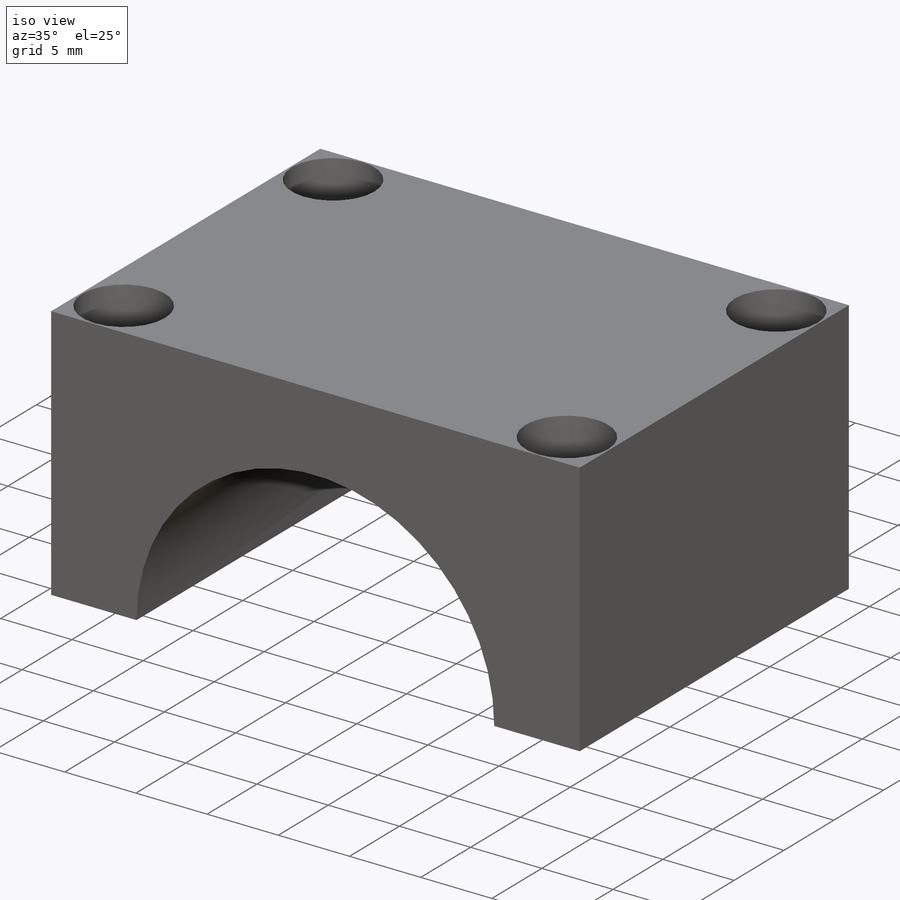
[diagram: iso view]
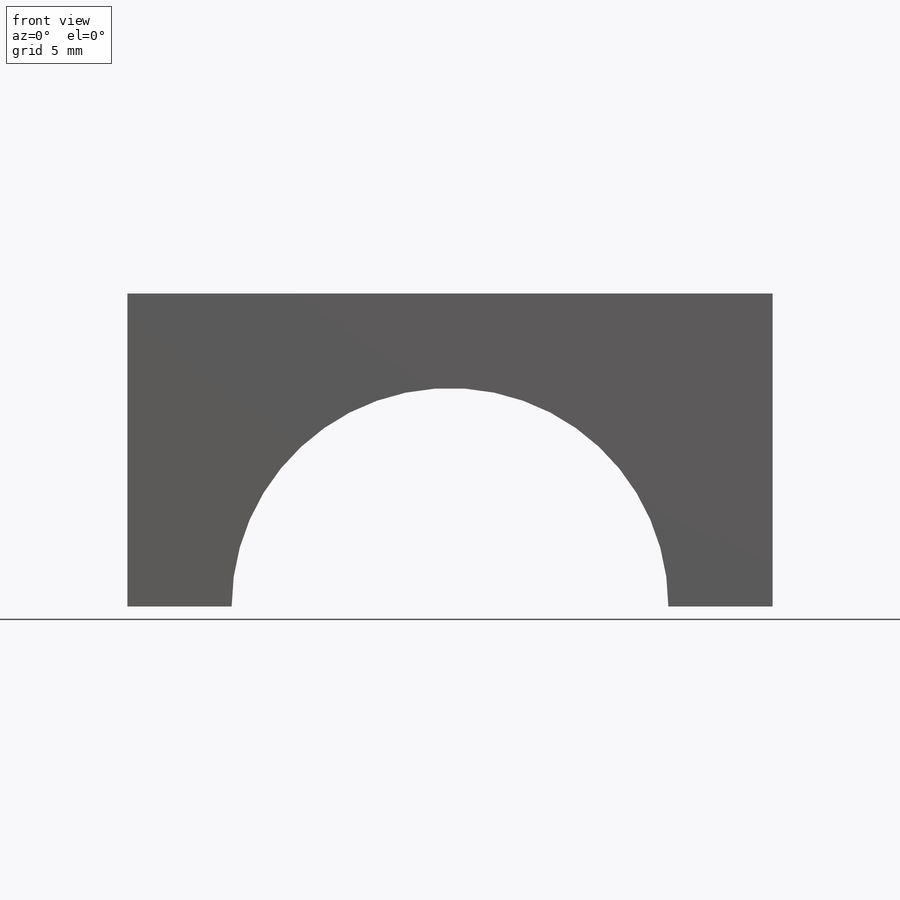
[diagram: front view]
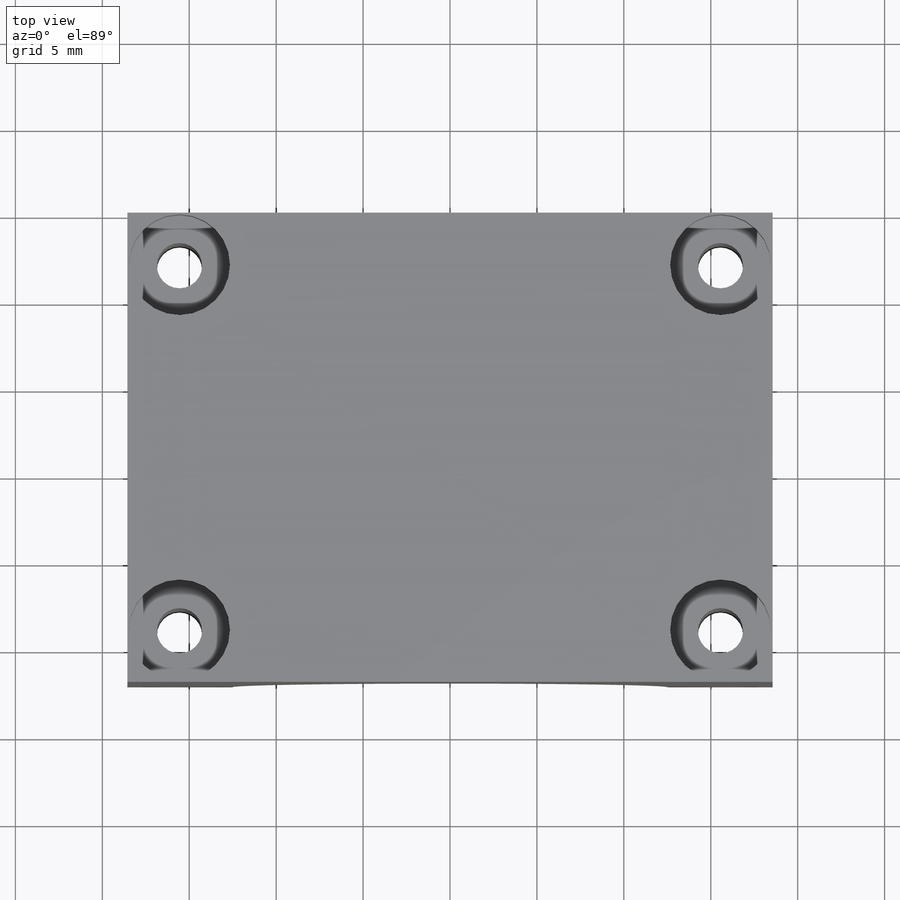
[diagram: top view]
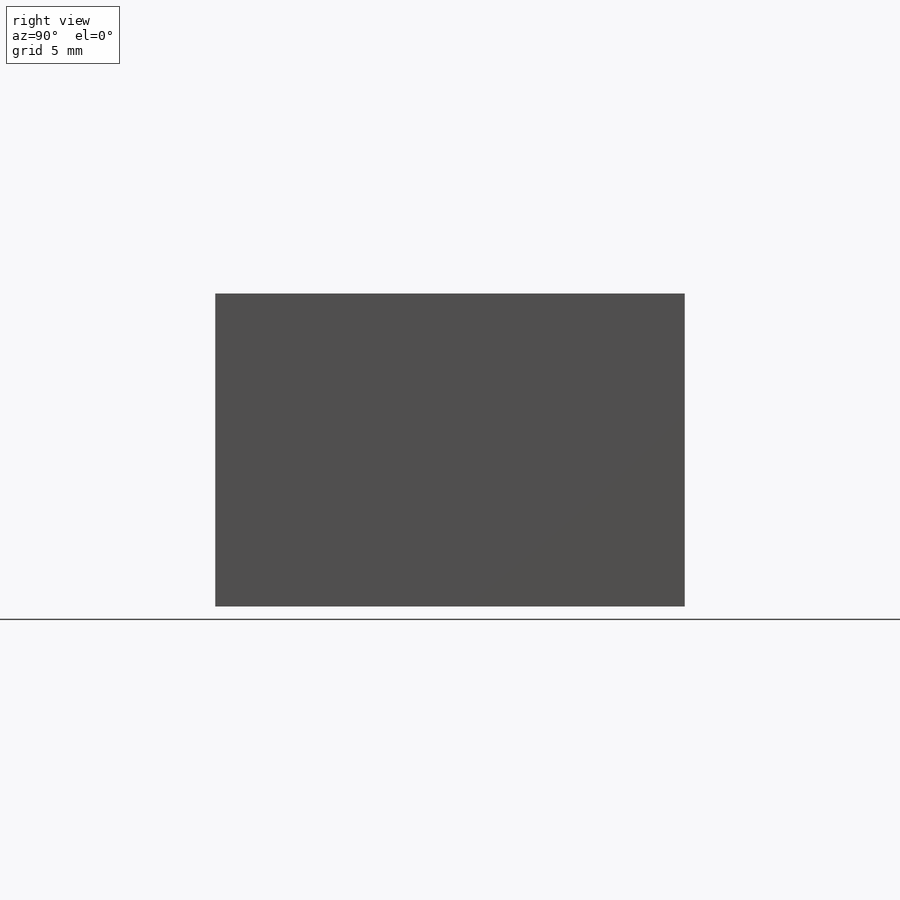
[diagram: right view]
SOLIDWORKS PART (.sldprt)
format: sldprt  version: not decoded by parser v0  size: 197,632 bytes
history: native  units: mm
features: plane x3, sketch x3, cut_extrude x2, material x1, extrude x1 (+10 scaffold rows collapsed)
feature tree (20):
  scaffold x10  (default folders/planes/origin — collapsed)
  material  "Matériau <non spécifié>"
  plane  "Plan de face"
  plane  "Plan de dessus"
  plane  "Plan de droite"
  sketch  "Esquisse1"  dims[c1.D1=~22.590134mm c1.D2=~12.560062mm c1.D3=~12.560062mm c2.D1=6.0mm c2.D2=18.0mm c2.D3=16.0mm]
  extrude  "Boss.-Extru.1"  Depth=27mm
  sketch  "Esquisse5"  dims[c1.D3=1.5mm c1.D1=3.0mm c1.D2=3.0mm c2.D3=~37.120125mm]
  cut_extrude  "Enlèv. mat.-Extru.1"  Depth=18mm
  sketch  "Esquisse6"  dims[c1.D3=~3.288252mm c1.D1=3.0mm c1.D2=3.0mm c2.D3=27.0mm]
  cut_extrude  "Enlèv. mat.-Extru.2"  Depth=3mm
decode coverage: 6 of 6 modeling features carry decoded parameters
note: ~ marks probable driven/reference dimensions
note: suppression state not decoded; provenance and decode notes live in map.json
